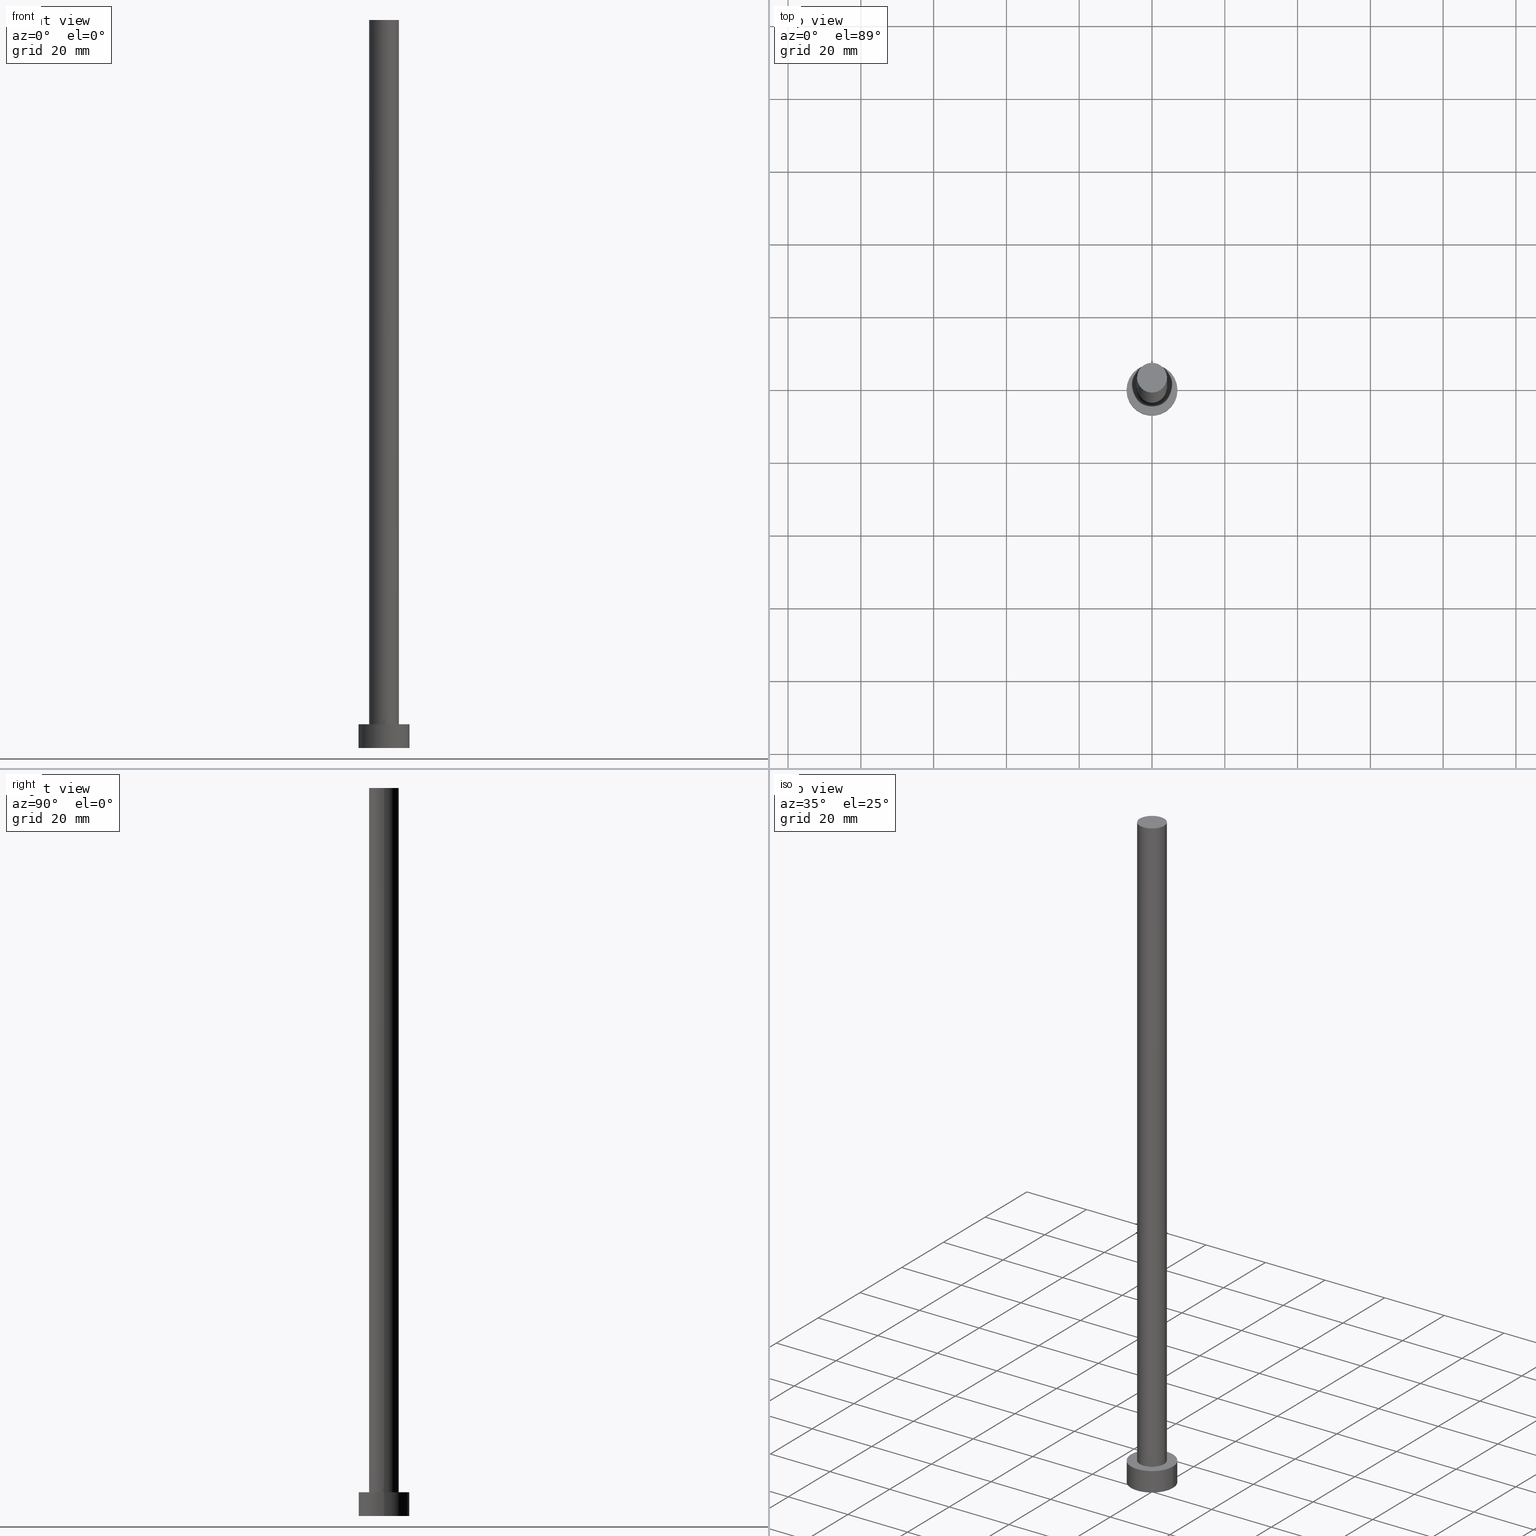
[diagram: canonical four-view strip — front | top / right | iso, engineering-drawing reading convention]
A machine part, canonical four-view strip (front | top / right | iso — engineering-drawing reading convention). The complete STEP part file that produces these views, byte-faithful:
ISO-10303-21;
HEADER;
FILE_DESCRIPTION (( 'STEP AP203' ),
    '1' );
FILE_NAME ('15e6.STEP',
    '2023-02-13T14:17:08',
    ( '' ),
    ( '' ),
    'SwSTEP 2.0',
    'SolidWorks 2019',
    '' );
FILE_SCHEMA (( 'CONFIG_CONTROL_DESIGN' ));
ENDSEC;

DATA;
#1 = PERSON_AND_ORGANIZATION_ROLE ( 'creator' ) ;
#2 = APPROVAL_DATE_TIME ( #138, #146 ) ;
#3 =( GEOMETRIC_REPRESENTATION_CONTEXT ( 3 ) GLOBAL_UNCERTAINTY_ASSIGNED_CONTEXT ( ( #200 ) ) GLOBAL_UNIT_ASSIGNED_CONTEXT ( ( #253, #156, #103 ) ) REPRESENTATION_CONTEXT ( 'NONE', 'WORKASPACE' ) );
#4 = APPROVAL_ROLE ( '' ) ;
#5 = DIRECTION ( 'NONE',  ( 1.000000000000000000, 0.000000000000000000, 0.000000000000000000 ) ) ;
#6 = AXIS2_PLACEMENT_3D ( 'NONE', #184, #169, #248 ) ;
#7 = COORDINATED_UNIVERSAL_TIME_OFFSET ( 1, 0, .AHEAD. ) ;
#8 = CIRCLE ( 'NONE', #166, 7.000000000000000000 ) ;
#9 = ORIENTED_EDGE ( 'NONE', *, *, #19, .F. ) ;
#10 = ORIENTED_EDGE ( 'NONE', *, *, #77, .F. ) ;
#11 = ORIENTED_EDGE ( 'NONE', *, *, #140, .F. ) ;
#12 = LOCAL_TIME ( 15, 17, 8.000000000000000000, #7 ) ;
#13 = DIRECTION ( 'NONE',  ( 0.000000000000000000, 0.000000000000000000, 1.000000000000000000 ) ) ;
#14 = DIRECTION ( 'NONE',  ( 0.000000000000000000, 0.000000000000000000, 1.000000000000000000 ) ) ;
#15 = EDGE_CURVE ( 'NONE', #68, #163, #28, .T. ) ;
#16 = DIRECTION ( 'NONE',  ( 1.000000000000000000, 0.000000000000000000, 0.000000000000000000 ) ) ;
#17 = LOCAL_TIME ( 15, 17, 8.000000000000000000, #214 ) ;
#18 = FACE_OUTER_BOUND ( 'NONE', #52, .T. ) ;
#19 = EDGE_CURVE ( 'NONE', #198, #168, #226, .T. ) ;
#20 = PERSON_AND_ORGANIZATION ( #215, #124 ) ;
#21 = VECTOR ( 'NONE', #250, 1000.000000000000000 ) ;
#22 = SECURITY_CLASSIFICATION ( '', '', #101 ) ;
#23 = PRODUCT_RELATED_PRODUCT_CATEGORY ( 'detail', '', ( #116 ) ) ;
#24 = EDGE_LOOP ( 'NONE', ( #199, #49 ) ) ;
#25 = VERTEX_POINT ( 'NONE', #225 ) ;
#26 = ORIENTED_EDGE ( 'NONE', *, *, #144, .F. ) ;
#27 = AXIS2_PLACEMENT_3D ( 'NONE', #235, #13, #92 ) ;
#28 = LINE ( 'NONE', #143, #21 ) ;
#29 = CARTESIAN_POINT ( 'NONE',  ( 0.000000000000000000, 0.000000000000000000, 6.500000000000000000 ) ) ;
#30 = CYLINDRICAL_SURFACE ( 'NONE', #74, 4.099999999999999645 ) ;
#31 = CC_DESIGN_SECURITY_CLASSIFICATION ( #22, ( #232 ) ) ;
#32 = CC_DESIGN_PERSON_AND_ORGANIZATION_ASSIGNMENT ( #20, #43, ( #232 ) ) ;
#33 = FACE_BOUND ( 'NONE', #223, .T. ) ;
#34 = CARTESIAN_POINT ( 'NONE',  ( -7.000000000000000000, 0.000000000000000000, 0.000000000000000000 ) ) ;
#35 = CYLINDRICAL_SURFACE ( 'NONE', #237, 4.099999999999999645 ) ;
#36 = VECTOR ( 'NONE', #131, 1000.000000000000000 ) ;
#37 = PRODUCT_DEFINITION ( 'NEZN�M�', '', #232, #106 ) ;
#38 = DIRECTION ( 'NONE',  ( 0.000000000000000000, 0.000000000000000000, 1.000000000000000000 ) ) ;
#39 = EDGE_CURVE ( 'NONE', #247, #198, #202, .T. ) ;
#40 = MECHANICAL_CONTEXT ( 'NONE', #246, 'mechanical' ) ;
#41 = ORIENTED_EDGE ( 'NONE', *, *, #164, .F. ) ;
#42 = CIRCLE ( 'NONE', #126, 7.000000000000000000 ) ;
#43 = PERSON_AND_ORGANIZATION_ROLE ( 'design_supplier' ) ;
#44 = AXIS2_PLACEMENT_3D ( 'NONE', #133, #38, #173 ) ;
#45 = PERSON_AND_ORGANIZATION ( #215, #124 ) ;
#46 = APPROVAL_STATUS ( 'not_yet_approved' ) ;
#47 = ORIENTED_EDGE ( 'NONE', *, *, #77, .T. ) ;
#48 = APPROVAL_PERSON_ORGANIZATION ( #45, #50, #4 ) ;
#49 = ORIENTED_EDGE ( 'NONE', *, *, #186, .F. ) ;
#50 = APPROVAL ( #83, 'NEUR�EN�' ) ;
#51 = CARTESIAN_POINT ( 'NONE',  ( 0.000000000000000000, 0.000000000000000000, 6.500000000000000000 ) ) ;
#52 = EDGE_LOOP ( 'NONE', ( #108, #201 ) ) ;
#53 = LINE ( 'NONE', #132, #60 ) ;
#54 = EDGE_CURVE ( 'NONE', #163, #181, #118, .T. ) ;
#55 = DIRECTION ( 'NONE',  ( 1.000000000000000000, 0.000000000000000000, -0.000000000000000000 ) ) ;
#56 = CIRCLE ( 'NONE', #44, 7.000000000000000000 ) ;
#57 = DIRECTION ( 'NONE',  ( 0.000000000000000000, 0.000000000000000000, 1.000000000000000000 ) ) ;
#58 = CARTESIAN_POINT ( 'NONE',  ( -4.099999999999999645, 0.000000000000000000, 6.500000000000000000 ) ) ;
#59 = CARTESIAN_POINT ( 'NONE',  ( 0.000000000000000000, 0.000000000000000000, 200.0000000000000000 ) ) ;
#60 = VECTOR ( 'NONE', #185, 1000.000000000000000 ) ;
#61 = PERSON_AND_ORGANIZATION ( #215, #124 ) ;
#62 = CALENDAR_DATE ( 2023, 13, 2 ) ;
#63 = EDGE_CURVE ( 'NONE', #247, #25, #211, .T. ) ;
#64 = DIRECTION ( 'NONE',  ( 0.000000000000000000, 0.000000000000000000, 1.000000000000000000 ) ) ;
#65 = CARTESIAN_POINT ( 'NONE',  ( 0.000000000000000000, 0.000000000000000000, 0.000000000000000000 ) ) ;
#66 = PERSON_AND_ORGANIZATION ( #215, #124 ) ;
#67 = EDGE_CURVE ( 'NONE', #244, #181, #53, .T. ) ;
#68 = VERTEX_POINT ( 'NONE', #203 ) ;
#69 = ORIENTED_EDGE ( 'NONE', *, *, #15, .F. ) ;
#70 = DIRECTION ( 'NONE',  ( 0.000000000000000000, 0.000000000000000000, 1.000000000000000000 ) ) ;
#71 = DIRECTION ( 'NONE',  ( 1.000000000000000000, 0.000000000000000000, -0.000000000000000000 ) ) ;
#72 = CC_DESIGN_DATE_AND_TIME_ASSIGNMENT ( #141, #161, ( #37 ) ) ;
#73 = DIRECTION ( 'NONE',  ( 0.000000000000000000, 0.000000000000000000, 1.000000000000000000 ) ) ;
#74 = AXIS2_PLACEMENT_3D ( 'NONE', #154, #251, #135 ) ;
#75 = CARTESIAN_POINT ( 'NONE',  ( 0.000000000000000000, 0.000000000000000000, 6.500000000000000000 ) ) ;
#76 = CC_DESIGN_APPROVAL ( #121, ( #37 ) ) ;
#77 = EDGE_CURVE ( 'NONE', #168, #198, #231, .T. ) ;
#78 = CYLINDRICAL_SURFACE ( 'NONE', #221, 7.000000000000000000 ) ;
#79 = CARTESIAN_POINT ( 'NONE',  ( 4.099999999999999645, 5.021051876504147385E-16, 200.0000000000000000 ) ) ;
#80 = PERSON_AND_ORGANIZATION ( #215, #124 ) ;
#81 = AXIS2_PLACEMENT_3D ( 'NONE', #207, #212, #55 ) ;
#82 = CIRCLE ( 'NONE', #27, 4.099999999999999645 ) ;
#83 = APPROVAL_STATUS ( 'not_yet_approved' ) ;
#84 = ADVANCED_FACE ( 'NONE', ( #187 ), #30, .T. ) ;
#85 = SHAPE_DEFINITION_REPRESENTATION ( #175, #210 ) ;
#86 = ORIENTED_EDGE ( 'NONE', *, *, #15, .T. ) ;
#87 = DATE_AND_TIME ( #158, #17 ) ;
#88 = EDGE_LOOP ( 'NONE', ( #224, #129, #86, #167 ) ) ;
#89 = ORIENTED_EDGE ( 'NONE', *, *, #39, .T. ) ;
#90 = AXIS2_PLACEMENT_3D ( 'NONE', #65, #64, #5 ) ;
#91 = ORIENTED_EDGE ( 'NONE', *, *, #186, .T. ) ;
#92 = DIRECTION ( 'NONE',  ( 1.000000000000000000, 0.000000000000000000, 0.000000000000000000 ) ) ;
#93 = PLANE ( 'NONE',  #81 ) ;
#94 = EDGE_CURVE ( 'NONE', #68, #244, #42, .T. ) ;
#95 = DIRECTION ( 'NONE',  ( -0.000000000000000000, -0.000000000000000000, -1.000000000000000000 ) ) ;
#96 = PLANE ( 'NONE',  #127 ) ;
#97 = PERSON_AND_ORGANIZATION ( #215, #124 ) ;
#98 = ADVANCED_FACE ( 'NONE', ( #117 ), #78, .T. ) ;
#99 = LOCAL_TIME ( 15, 17, 8.000000000000000000, #239 ) ;
#100 = APPLICATION_PROTOCOL_DEFINITION ( 'international standard', 'config_control_design', 1994, #246 ) ;
#101 = SECURITY_CLASSIFICATION_LEVEL ( 'unclassified' ) ;
#102 = CC_DESIGN_PERSON_AND_ORGANIZATION_ASSIGNMENT ( #66, #195, ( #232 ) ) ;
#103 =( NAMED_UNIT ( * ) SI_UNIT ( $, .STERADIAN. ) SOLID_ANGLE_UNIT ( ) );
#104 = ORIENTED_EDGE ( 'NONE', *, *, #164, .T. ) ;
#105 = ORIENTED_EDGE ( 'NONE', *, *, #140, .T. ) ;
#106 = DESIGN_CONTEXT ( 'detailed design', #111, 'design' ) ;
#107 = EDGE_LOOP ( 'NONE', ( #227, #26, #105, #47 ) ) ;
#108 = ORIENTED_EDGE ( 'NONE', *, *, #144, .T. ) ;
#109 = CC_DESIGN_DATE_AND_TIME_ASSIGNMENT ( #240, #179, ( #22 ) ) ;
#110 = EDGE_LOOP ( 'NONE', ( #160, #89, #165, #11 ) ) ;
#111 = APPLICATION_CONTEXT ( 'configuration controlled 3d designs of mechanical parts and assemblies' ) ;
#112 = VECTOR ( 'NONE', #229, 1000.000000000000000 ) ;
#113 = DIRECTION ( 'NONE',  ( 1.000000000000000000, 0.000000000000000000, 0.000000000000000000 ) ) ;
#114 = PLANE ( 'NONE',  #157 ) ;
#115 = ADVANCED_FACE ( 'NONE', ( #254 ), #93, .F. ) ;
#116 = PRODUCT ( '15e6', '15e6', '', ( #40 ) ) ;
#117 = FACE_OUTER_BOUND ( 'NONE', #88, .T. ) ;
#118 = CIRCLE ( 'NONE', #6, 7.000000000000000000 ) ;
#119 = DIRECTION ( 'NONE',  ( -0.000000000000000000, -0.000000000000000000, -1.000000000000000000 ) ) ;
#120 = DIRECTION ( 'NONE',  ( 1.000000000000000000, 0.000000000000000000, -0.000000000000000000 ) ) ;
#121 = APPROVAL ( #219, 'NEUR�EN�' ) ;
#122 = PERSON_AND_ORGANIZATION_ROLE ( 'design_owner' ) ;
#123 = APPROVAL_DATE_TIME ( #87, #121 ) ;
#124 = ORGANIZATION ( 'NEUR�EN�', 'NEUR�EN�', '' ) ;
#125 = APPROVAL_DATE_TIME ( #220, #50 ) ;
#126 = AXIS2_PLACEMENT_3D ( 'NONE', #234, #205, #192 ) ;
#127 = AXIS2_PLACEMENT_3D ( 'NONE', #59, #14, #120 ) ;
#128 = CARTESIAN_POINT ( 'NONE',  ( 4.099999999999999645, 5.021051876504147385E-16, 200.0000000000000000 ) ) ;
#129 = ORIENTED_EDGE ( 'NONE', *, *, #94, .F. ) ;
#130 = EDGE_LOOP ( 'NONE', ( #145, #104 ) ) ;
#131 = DIRECTION ( 'NONE',  ( -0.000000000000000000, -0.000000000000000000, -1.000000000000000000 ) ) ;
#132 = CARTESIAN_POINT ( 'NONE',  ( 7.000000000000000000, 8.572527594031471218E-16, 6.500000000000000000 ) ) ;
#133 = CARTESIAN_POINT ( 'NONE',  ( 0.000000000000000000, 0.000000000000000000, 0.000000000000000000 ) ) ;
#134 = DIRECTION ( 'NONE',  ( -1.000000000000000000, 0.000000000000000000, 0.000000000000000000 ) ) ;
#135 = DIRECTION ( 'NONE',  ( -1.000000000000000000, 0.000000000000000000, 0.000000000000000000 ) ) ;
#136 = FACE_OUTER_BOUND ( 'NONE', #147, .T. ) ;
#137 = DIRECTION ( 'NONE',  ( -1.000000000000000000, 0.000000000000000000, 0.000000000000000000 ) ) ;
#138 = DATE_AND_TIME ( #242, #153 ) ;
#139 = COORDINATED_UNIVERSAL_TIME_OFFSET ( 1, 0, .AHEAD. ) ;
#140 = EDGE_CURVE ( 'NONE', #25, #168, #252, .T. ) ;
#141 = DATE_AND_TIME ( #159, #12 ) ;
#142 = APPROVAL_PERSON_ORGANIZATION ( #61, #121, #177 ) ;
#143 = CARTESIAN_POINT ( 'NONE',  ( -7.000000000000000000, 0.000000000000000000, 6.500000000000000000 ) ) ;
#144 = EDGE_CURVE ( 'NONE', #25, #247, #82, .T. ) ;
#145 = ORIENTED_EDGE ( 'NONE', *, *, #94, .T. ) ;
#146 = APPROVAL ( #46, 'NEUR�EN�' ) ;
#147 = EDGE_LOOP ( 'NONE', ( #41, #222, #91, #69 ) ) ;
#148 = DIRECTION ( 'NONE',  ( 1.000000000000000000, 0.000000000000000000, 0.000000000000000000 ) ) ;
#149 = AXIS2_PLACEMENT_3D ( 'NONE', #255, #95, #134 ) ;
#150 = CARTESIAN_POINT ( 'NONE',  ( 0.000000000000000000, 0.000000000000000000, 200.0000000000000000 ) ) ;
#151 = CARTESIAN_POINT ( 'NONE',  ( 0.000000000000000000, 0.000000000000000000, 6.500000000000000000 ) ) ;
#152 = AXIS2_PLACEMENT_3D ( 'NONE', #29, #73, #113 ) ;
#153 = LOCAL_TIME ( 15, 17, 8.000000000000000000, #236 ) ;
#154 = CARTESIAN_POINT ( 'NONE',  ( 0.000000000000000000, 0.000000000000000000, 200.0000000000000000 ) ) ;
#155 = DIRECTION ( 'NONE',  ( -1.000000000000000000, 0.000000000000000000, 0.000000000000000000 ) ) ;
#156 =( NAMED_UNIT ( * ) PLANE_ANGLE_UNIT ( ) SI_UNIT ( $, .RADIAN. ) );
#157 = AXIS2_PLACEMENT_3D ( 'NONE', #75, #171, #71 ) ;
#158 = CALENDAR_DATE ( 2023, 13, 2 ) ;
#159 = CALENDAR_DATE ( 2023, 13, 2 ) ;
#160 = ORIENTED_EDGE ( 'NONE', *, *, #63, .F. ) ;
#161 = DATE_TIME_ROLE ( 'creation_date' ) ;
#162 = APPROVAL_PERSON_ORGANIZATION ( #243, #146, #218 ) ;
#163 = VERTEX_POINT ( 'NONE', #34 ) ;
#164 = EDGE_CURVE ( 'NONE', #244, #68, #8, .T. ) ;
#165 = ORIENTED_EDGE ( 'NONE', *, *, #19, .T. ) ;
#166 = AXIS2_PLACEMENT_3D ( 'NONE', #233, #57, #16 ) ;
#167 = ORIENTED_EDGE ( 'NONE', *, *, #54, .T. ) ;
#168 = VERTEX_POINT ( 'NONE', #58 ) ;
#169 = DIRECTION ( 'NONE',  ( 0.000000000000000000, 0.000000000000000000, 1.000000000000000000 ) ) ;
#170 = FACE_OUTER_BOUND ( 'NONE', #130, .T. ) ;
#171 = DIRECTION ( 'NONE',  ( 0.000000000000000000, 0.000000000000000000, 1.000000000000000000 ) ) ;
#172 = CC_DESIGN_PERSON_AND_ORGANIZATION_ASSIGNMENT ( #180, #1, ( #37 ) ) ;
#173 = DIRECTION ( 'NONE',  ( 1.000000000000000000, 0.000000000000000000, 0.000000000000000000 ) ) ;
#174 = CARTESIAN_POINT ( 'NONE',  ( 4.099999999999999645, 5.021051876504147385E-16, 6.500000000000000000 ) ) ;
#175 = PRODUCT_DEFINITION_SHAPE ( 'NONE', 'NONE',  #37 ) ;
#176 = CARTESIAN_POINT ( 'NONE',  ( 7.000000000000000000, 8.572527594031471218E-16, 6.500000000000000000 ) ) ;
#177 = APPROVAL_ROLE ( '' ) ;
#178 = CLOSED_SHELL ( 'NONE', ( #84, #191, #98, #216, #115, #238, #241 ) ) ;
#179 = DATE_TIME_ROLE ( 'classification_date' ) ;
#180 = PERSON_AND_ORGANIZATION ( #215, #124 ) ;
#181 = VERTEX_POINT ( 'NONE', #204 ) ;
#182 = CARTESIAN_POINT ( 'NONE',  ( 0.000000000000000000, 0.000000000000000000, 200.0000000000000000 ) ) ;
#183 = DIRECTION ( 'NONE',  ( 0.000000000000000000, 0.000000000000000000, 1.000000000000000000 ) ) ;
#184 = CARTESIAN_POINT ( 'NONE',  ( 0.000000000000000000, 0.000000000000000000, 0.000000000000000000 ) ) ;
#185 = DIRECTION ( 'NONE',  ( -0.000000000000000000, -0.000000000000000000, -1.000000000000000000 ) ) ;
#186 = EDGE_CURVE ( 'NONE', #181, #163, #56, .T. ) ;
#187 = FACE_OUTER_BOUND ( 'NONE', #110, .T. ) ;
#188 = CC_DESIGN_APPROVAL ( #50, ( #22 ) ) ;
#189 = DIRECTION ( 'NONE',  ( -0.000000000000000000, -0.000000000000000000, -1.000000000000000000 ) ) ;
#190 = CARTESIAN_POINT ( 'NONE',  ( -4.099999999999999645, 0.000000000000000000, 200.0000000000000000 ) ) ;
#191 = ADVANCED_FACE ( 'NONE', ( #136 ), #230, .T. ) ;
#192 = DIRECTION ( 'NONE',  ( 1.000000000000000000, 0.000000000000000000, 0.000000000000000000 ) ) ;
#193 = LOCAL_TIME ( 15, 17, 8.000000000000000000, #139 ) ;
#194 = APPLICATION_PROTOCOL_DEFINITION ( 'international standard', 'config_control_design', 1994, #111 ) ;
#195 = PERSON_AND_ORGANIZATION_ROLE ( 'creator' ) ;
#196 = AXIS2_PLACEMENT_3D ( 'NONE', #182, #70, #148 ) ;
#197 = PERSON_AND_ORGANIZATION_ROLE ( 'classification_officer' ) ;
#198 = VERTEX_POINT ( 'NONE', #174 ) ;
#199 = ORIENTED_EDGE ( 'NONE', *, *, #54, .F. ) ;
#200 = UNCERTAINTY_MEASURE_WITH_UNIT (LENGTH_MEASURE( 1.000000000000000082E-05 ), #253, 'distance_accuracy_value', 'NONE');
#201 = ORIENTED_EDGE ( 'NONE', *, *, #63, .T. ) ;
#202 = LINE ( 'NONE', #128, #36 ) ;
#203 = CARTESIAN_POINT ( 'NONE',  ( -7.000000000000000000, 0.000000000000000000, 6.500000000000000000 ) ) ;
#204 = CARTESIAN_POINT ( 'NONE',  ( 7.000000000000000000, 8.572527594031471218E-16, 0.000000000000000000 ) ) ;
#205 = DIRECTION ( 'NONE',  ( 0.000000000000000000, 0.000000000000000000, 1.000000000000000000 ) ) ;
#206 = MANIFOLD_SOLID_BREP ( 'P�idat vysunut�m3', #178 ) ;
#207 = CARTESIAN_POINT ( 'NONE',  ( 0.000000000000000000, 0.000000000000000000, 0.000000000000000000 ) ) ;
#208 = CC_DESIGN_PERSON_AND_ORGANIZATION_ASSIGNMENT ( #80, #122, ( #116 ) ) ;
#209 = FACE_OUTER_BOUND ( 'NONE', #107, .T. ) ;
#210 = ADVANCED_BREP_SHAPE_REPRESENTATION ( '15e6', ( #206, #90 ), #3 ) ;
#211 = CIRCLE ( 'NONE', #196, 4.099999999999999645 ) ;
#212 = DIRECTION ( 'NONE',  ( 0.000000000000000000, 0.000000000000000000, 1.000000000000000000 ) ) ;
#213 = CC_DESIGN_APPROVAL ( #146, ( #232 ) ) ;
#214 = COORDINATED_UNIVERSAL_TIME_OFFSET ( 1, 0, .AHEAD. ) ;
#215 = PERSON ( 'NEUR�EN�', 'NEUR�EN�', 'NEUR�EN�', ('NEUR�EN�'), ('NEUR�EN�'), ('NEUR�EN�') ) ;
#216 = ADVANCED_FACE ( 'NONE', ( #33, #170 ), #114, .T. ) ;
#217 = CALENDAR_DATE ( 2023, 13, 2 ) ;
#218 = APPROVAL_ROLE ( '' ) ;
#219 = APPROVAL_STATUS ( 'not_yet_approved' ) ;
#220 = DATE_AND_TIME ( #217, #193 ) ;
#221 = AXIS2_PLACEMENT_3D ( 'NONE', #151, #189, #155 ) ;
#222 = ORIENTED_EDGE ( 'NONE', *, *, #67, .T. ) ;
#223 = EDGE_LOOP ( 'NONE', ( #10, #9 ) ) ;
#224 = ORIENTED_EDGE ( 'NONE', *, *, #67, .F. ) ;
#225 = CARTESIAN_POINT ( 'NONE',  ( -4.099999999999999645, 0.000000000000000000, 200.0000000000000000 ) ) ;
#226 = CIRCLE ( 'NONE', #245, 4.099999999999999645 ) ;
#227 = ORIENTED_EDGE ( 'NONE', *, *, #39, .F. ) ;
#228 = CC_DESIGN_PERSON_AND_ORGANIZATION_ASSIGNMENT ( #97, #197, ( #22 ) ) ;
#229 = DIRECTION ( 'NONE',  ( -0.000000000000000000, -0.000000000000000000, -1.000000000000000000 ) ) ;
#230 = CYLINDRICAL_SURFACE ( 'NONE', #149, 7.000000000000000000 ) ;
#231 = CIRCLE ( 'NONE', #152, 4.099999999999999645 ) ;
#232 = PRODUCT_DEFINITION_FORMATION_WITH_SPECIFIED_SOURCE ( 'LIBOVOLN�', '', #116, .NOT_KNOWN. ) ;
#233 = CARTESIAN_POINT ( 'NONE',  ( 0.000000000000000000, 0.000000000000000000, 6.500000000000000000 ) ) ;
#234 = CARTESIAN_POINT ( 'NONE',  ( 0.000000000000000000, 0.000000000000000000, 6.500000000000000000 ) ) ;
#235 = CARTESIAN_POINT ( 'NONE',  ( 0.000000000000000000, 0.000000000000000000, 200.0000000000000000 ) ) ;
#236 = COORDINATED_UNIVERSAL_TIME_OFFSET ( 1, 0, .AHEAD. ) ;
#237 = AXIS2_PLACEMENT_3D ( 'NONE', #150, #119, #137 ) ;
#238 = ADVANCED_FACE ( 'NONE', ( #209 ), #35, .T. ) ;
#239 = COORDINATED_UNIVERSAL_TIME_OFFSET ( 1, 0, .AHEAD. ) ;
#240 = DATE_AND_TIME ( #62, #99 ) ;
#241 = ADVANCED_FACE ( 'NONE', ( #18 ), #96, .T. ) ;
#242 = CALENDAR_DATE ( 2023, 13, 2 ) ;
#243 = PERSON_AND_ORGANIZATION ( #215, #124 ) ;
#244 = VERTEX_POINT ( 'NONE', #176 ) ;
#245 = AXIS2_PLACEMENT_3D ( 'NONE', #51, #183, #249 ) ;
#246 = APPLICATION_CONTEXT ( 'configuration controlled 3d designs of mechanical parts and assemblies' ) ;
#247 = VERTEX_POINT ( 'NONE', #79 ) ;
#248 = DIRECTION ( 'NONE',  ( 1.000000000000000000, 0.000000000000000000, 0.000000000000000000 ) ) ;
#249 = DIRECTION ( 'NONE',  ( 1.000000000000000000, 0.000000000000000000, 0.000000000000000000 ) ) ;
#250 = DIRECTION ( 'NONE',  ( -0.000000000000000000, -0.000000000000000000, -1.000000000000000000 ) ) ;
#251 = DIRECTION ( 'NONE',  ( -0.000000000000000000, -0.000000000000000000, -1.000000000000000000 ) ) ;
#252 = LINE ( 'NONE', #190, #112 ) ;
#253 =( LENGTH_UNIT ( ) NAMED_UNIT ( * ) SI_UNIT ( .MILLI., .METRE. ) );
#254 = FACE_OUTER_BOUND ( 'NONE', #24, .T. ) ;
#255 = CARTESIAN_POINT ( 'NONE',  ( 0.000000000000000000, 0.000000000000000000, 6.500000000000000000 ) ) ;
ENDSEC;
END-ISO-10303-21;
